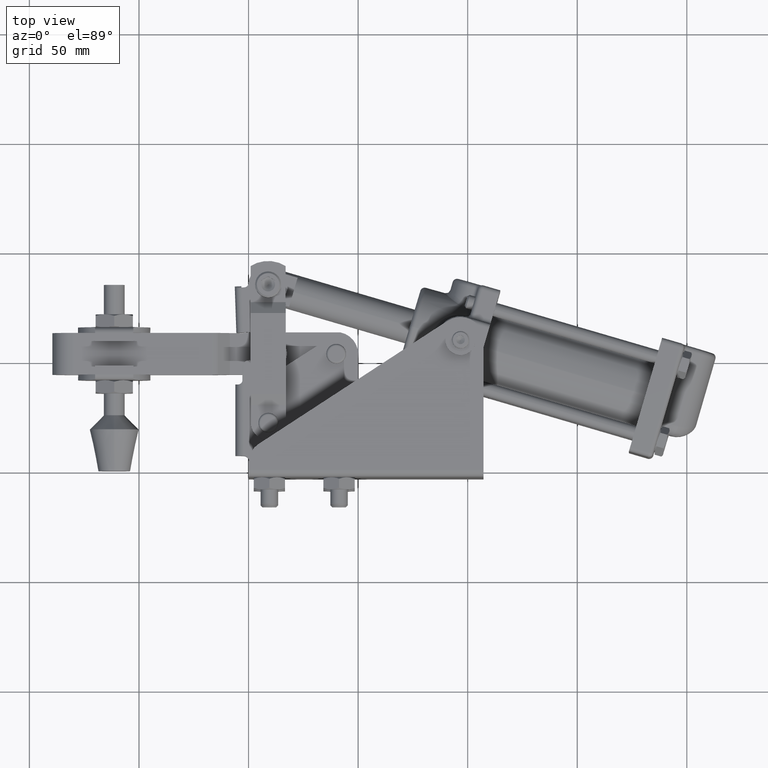
[diagram: clean part render]
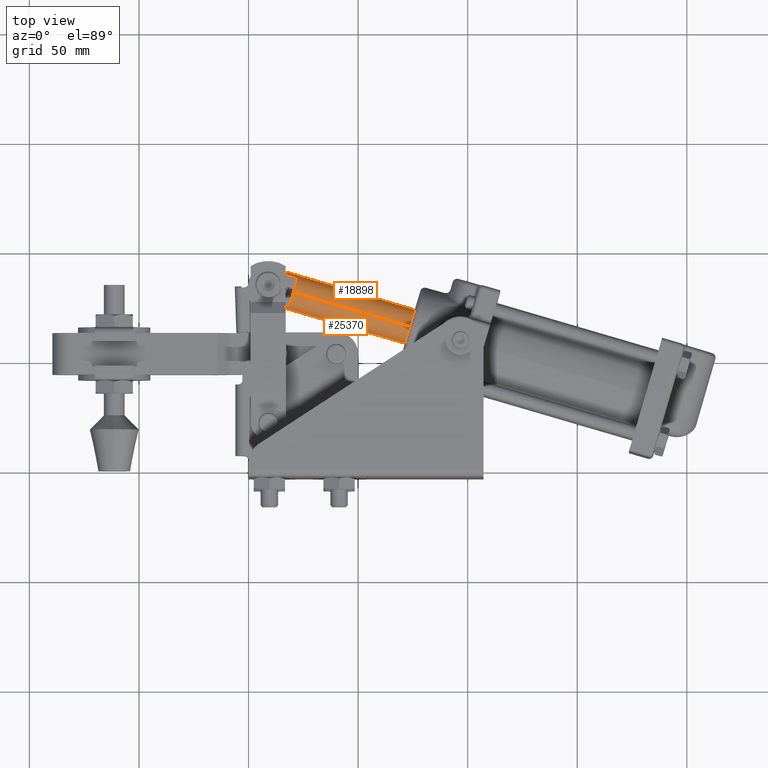
[diagram: same view with one multi-face feature highlighted, each face labeled with its STEP entity id]
A machine part, top view. The highlighted faces form ONE feature: a constant-radius fillet chain: 2 tangent blend faces with common blend radius 8 mm. The faces share edges in the B-rep.
Their STEP definitions:
[1] entity #25370 (Cylinder):
#10 = CARTESIAN_POINT ( 'NONE',  ( 83.69756063410230200, 48.46589740183173200, -5.572739699503369400E-015 ) ) ;
#711 = EDGE_CURVE ( 'NONE', #22951, #13793, #9620, .T. ) ;
#2456 = CARTESIAN_POINT ( 'NONE',  ( 59.70509566448170300, 55.49168025369445400, -7.999999999999998200 ) ) ;
#2608 = DIRECTION ( 'NONE',  ( 0.0000000000000000000, 0.0000000000000000000, 1.000000000000000000 ) ) ;
#3649 = EDGE_CURVE ( 'NONE', #12721, #12297, #4742, .T. ) ;
#3759 = DIRECTION ( 'NONE',  ( 0.9596985987848242200, -0.2810313140745089300, -2.000102180355122200E-016 ) ) ;
#3852 = VECTOR ( 'NONE', #30471, 1000.000000000000100 ) ;
#3926 = CARTESIAN_POINT ( 'NONE',  ( -44.66703755958510400, 77.71932316130077800, -1.412453702423432000 ) ) ;
#4742 = CIRCLE ( 'NONE', #11624, 7.999999999999998200 ) ;
#5920 = EDGE_CURVE ( 'NONE', #12297, #11174, #25400, .T. ) ;
#6519 = LINE ( 'NONE', #17022, #18675 ) ;
#7234 = VERTEX_POINT ( 'NONE', #15891 ) ;
#8783 = CARTESIAN_POINT ( 'NONE',  ( 59.70509566448170300, 55.49168025369445400, 7.999999999999998200 ) ) ;
#9620 =( BOUNDED_CURVE ( )  B_SPLINE_CURVE ( 3, ( #11579, #3926, #14877, #23962 ),
 .UNSPECIFIED., .F., .T. ) 
 B_SPLINE_CURVE_WITH_KNOTS ( ( 4, 4 ),
 ( 4.712388980384689700, 5.235987755982986200 ),
 .UNSPECIFIED. ) 
 CURVE ( )  GEOMETRIC_REPRESENTATION_ITEM ( )  RATIONAL_B_SPLINE_CURVE ( ( 1.000000000000000000, 0.9772838841927123900, 0.9772838841927123900, 1.000000000000000000 ) ) 
 REPRESENTATION_ITEM ( '' )  );
#10302 = CARTESIAN_POINT ( 'NONE',  ( -45.87364224485695300, 78.45357829064599300, 2.776779212031900400 ) ) ;
#10312 = CARTESIAN_POINT ( 'NONE',  ( -46.84909366104368200, 79.47510655562402300, -3.999999999999964500 ) ) ;
#10757 = EDGE_CURVE ( 'NONE', #23233, #22951, #16465, .T. ) ;
#11083 = DIRECTION ( 'NONE',  ( 0.9596985987848242200, -0.2810313140745089300, -2.000102180355122200E-016 ) ) ;
#11174 = VERTEX_POINT ( 'NONE', #23231 ) ;
#11579 = CARTESIAN_POINT ( 'NONE',  ( -43.31150772052087900, 77.32237944123929200, 2.042858864511652000E-014 ) ) ;
#11624 = AXIS2_PLACEMENT_3D ( 'NONE', #14197, #11083, #22032 ) ;
#11874 = CYLINDRICAL_SURFACE ( 'NONE', #25609, 7.999999999999998200 ) ;
#12297 = VERTEX_POINT ( 'NONE', #2456 ) ;
#12372 = CARTESIAN_POINT ( 'NONE',  ( 83.69756063410230200, 48.46589740183173200, 7.999999999999992900 ) ) ;
#12491 = DIRECTION ( 'NONE',  ( 0.9596985987848241100, -0.2810313140745088800, -2.000102180355121900E-016 ) ) ;
#12721 = VERTEX_POINT ( 'NONE', #8783 ) ;
#13083 = ORIENTED_EDGE ( 'NONE', *, *, #3649, .F. ) ;
#13286 = CARTESIAN_POINT ( 'NONE',  ( -44.66703755958509700, 77.71932316130077800, 1.412453702423472200 ) ) ;
#13654 = DIRECTION ( 'NONE',  ( -0.9596985987848241100, 0.2810313140745089300, 2.000102180355121900E-016 ) ) ;
#13725 = CARTESIAN_POINT ( 'NONE',  ( 83.69756063410230200, 48.46589740183173200, -8.000000000000003600 ) ) ;
#13793 = VERTEX_POINT ( 'NONE', #10312 ) ;
#14009 = EDGE_LOOP ( 'NONE', ( #16331, #13083, #17735, #28850, #20024, #28593, #31894, #18820, #20927 ) ) ;
#14197 = CARTESIAN_POINT ( 'NONE',  ( 59.70509566448170300, 55.49168025369445400, -5.724842486155624300E-016 ) ) ;
#14367 = CARTESIAN_POINT ( 'NONE',  ( -43.31150772052087900, 77.32237944123929200, 2.042858864511652000E-014 ) ) ;
#14877 = CARTESIAN_POINT ( 'NONE',  ( -45.87364224485695300, 78.45357829064597900, -2.776779212031860400 ) ) ;
#14958 = AXIS2_PLACEMENT_3D ( 'NONE', #19294, #3759, #21888 ) ;
#15451 = CARTESIAN_POINT ( 'NONE',  ( -31.49391608048651700, 74.97860553043186400, 4.000000000000018700 ) ) ;
#15891 = CARTESIAN_POINT ( 'NONE',  ( -29.54687402250692700, 81.62759246262376700, 8.000000000000017800 ) ) ;
#16331 = ORIENTED_EDGE ( 'NONE', *, *, #5920, .F. ) ;
#16465 =( BOUNDED_CURVE ( )  B_SPLINE_CURVE ( 3, ( #31233, #10302, #13286, #14367 ),
 .UNSPECIFIED., .F., .T. ) 
 B_SPLINE_CURVE_WITH_KNOTS ( ( 4, 4 ),
 ( 1.047197551196600700, 1.570796326794896800 ),
 .UNSPECIFIED. ) 
 CURVE ( )  GEOMETRIC_REPRESENTATION_ITEM ( )  RATIONAL_B_SPLINE_CURVE ( ( 1.000000000000000000, 0.9772838841927123900, 0.9772838841927123900, 1.000000000000000000 ) ) 
 REPRESENTATION_ITEM ( '' )  );
#16658 = DIRECTION ( 'NONE',  ( -0.9596985987848241100, 0.2810313140745089300, 2.000102180355121900E-016 ) ) ;
#17022 = CARTESIAN_POINT ( 'NONE',  ( 81.75051857612273000, 41.81691046963982900, -3.999999999999988000 ) ) ;
#17488 = CARTESIAN_POINT ( 'NONE',  ( -46.84909366104366800, 79.47510655562400900, 4.000000000000010700 ) ) ;
#17735 = ORIENTED_EDGE ( 'NONE', *, *, #24743, .T. ) ;
#18127 = DIRECTION ( 'NONE',  ( -0.9596985987848240000, 0.2810313140745088800, 2.000102180355121700E-016 ) ) ;
#18514 = VECTOR ( 'NONE', #13654, 1000.000000000000100 ) ;
#18675 = VECTOR ( 'NONE', #32637, 1000.000000000000100 ) ;
#18820 = ORIENTED_EDGE ( 'NONE', *, *, #21919, .T. ) ;
#18838 = EDGE_CURVE ( 'NONE', #20788, #11174, #20152, .T. ) ;
#19294 = CARTESIAN_POINT ( 'NONE',  ( -29.54687402250692700, 81.62759246262378100, 1.802846602868707000E-014 ) ) ;
#20024 = ORIENTED_EDGE ( 'NONE', *, *, #23533, .T. ) ;
#20152 = CIRCLE ( 'NONE', #14958, 7.999999999999998200 ) ;
#20570 = LINE ( 'NONE', #32150, #26641 ) ;
#20788 = VERTEX_POINT ( 'NONE', #27412 ) ;
#20927 = ORIENTED_EDGE ( 'NONE', *, *, #18838, .T. ) ;
#21888 = DIRECTION ( 'NONE',  ( 0.0000000000000000000, 0.0000000000000000000, -1.000000000000000000 ) ) ;
#21919 = EDGE_CURVE ( 'NONE', #13793, #20788, #6519, .T. ) ;
#22032 = DIRECTION ( 'NONE',  ( 0.0000000000000000000, 0.0000000000000000000, -1.000000000000000000 ) ) ;
#22202 = CIRCLE ( 'NONE', #30241, 7.999999999999998200 ) ;
#22951 = VERTEX_POINT ( 'NONE', #30389 ) ;
#23231 = CARTESIAN_POINT ( 'NONE',  ( -29.54687402250691300, 81.62759246262376700, -7.999999999999979600 ) ) ;
#23233 = VERTEX_POINT ( 'NONE', #17488 ) ;
#23347 = VERTEX_POINT ( 'NONE', #15451 ) ;
#23533 = EDGE_CURVE ( 'NONE', #23347, #23233, #20570, .T. ) ;
#23747 = LINE ( 'NONE', #12372, #3852 ) ;
#23962 = CARTESIAN_POINT ( 'NONE',  ( -46.84909366104368200, 79.47510655562402300, -3.999999999999964500 ) ) ;
#24743 = EDGE_CURVE ( 'NONE', #12721, #7234, #23747, .T. ) ;
#25370 = ADVANCED_FACE ( 'NONE', ( #33335 ), #11874, .T. ) ;
#25400 = LINE ( 'NONE', #13725, #18514 ) ;
#25609 = AXIS2_PLACEMENT_3D ( 'NONE', #10, #18127, #2608 ) ;
#26641 = VECTOR ( 'NONE', #16658, 1000.000000000000100 ) ;
#27412 = CARTESIAN_POINT ( 'NONE',  ( -31.49391608048651700, 74.97860553043186400, -3.999999999999968000 ) ) ;
#27995 = CARTESIAN_POINT ( 'NONE',  ( -29.54687402250692700, 81.62759246262378100, 1.802846602868707000E-014 ) ) ;
#28350 = EDGE_CURVE ( 'NONE', #7234, #23347, #22202, .T. ) ;
#28593 = ORIENTED_EDGE ( 'NONE', *, *, #10757, .T. ) ;
#28850 = ORIENTED_EDGE ( 'NONE', *, *, #28350, .T. ) ;
#30241 = AXIS2_PLACEMENT_3D ( 'NONE', #27995, #12491, #30599 ) ;
#30389 = CARTESIAN_POINT ( 'NONE',  ( -43.31150772052087900, 77.32237944123929200, 2.042858864511652000E-014 ) ) ;
#30471 = DIRECTION ( 'NONE',  ( -0.9596985987848241100, 0.2810313140745089300, 2.000102180355121900E-016 ) ) ;
#30599 = DIRECTION ( 'NONE',  ( 0.0000000000000000000, 0.0000000000000000000, -1.000000000000000000 ) ) ;
#31233 = CARTESIAN_POINT ( 'NONE',  ( -46.84909366104366800, 79.47510655562400900, 4.000000000000010700 ) ) ;
#31894 = ORIENTED_EDGE ( 'NONE', *, *, #711, .T. ) ;
#32150 = CARTESIAN_POINT ( 'NONE',  ( 81.75051857612273000, 41.81691046963982900, 3.999999999999965400 ) ) ;
#32637 = DIRECTION ( 'NONE',  ( 0.9596985987848241100, -0.2810313140745089300, -2.000102180355121900E-016 ) ) ;
#33335 = FACE_OUTER_BOUND ( 'NONE', #14009, .T. ) ;
[2] entity #18898 (Cylinder):
#719 =( BOUNDED_CURVE ( )  B_SPLINE_CURVE ( 3, ( #19072, #727, #24964, #32266 ),
 .UNSPECIFIED., .F., .T. ) 
 B_SPLINE_CURVE_WITH_KNOTS ( ( 4, 4 ),
 ( 1.047197551196598500, 1.570796326794896600 ),
 .UNSPECIFIED. ) 
 CURVE ( )  GEOMETRIC_REPRESENTATION_ITEM ( )  RATIONAL_B_SPLINE_CURVE ( ( 1.000000000000000000, 0.9772838841927122800, 0.9772838841927122800, 1.000000000000000000 ) ) 
 REPRESENTATION_ITEM ( '' )  );
#727 = CARTESIAN_POINT ( 'NONE',  ( -41.58261440883632100, 93.10708199409401700, -2.776779212031871500 ) ) ;
#962 = CARTESIAN_POINT ( 'NONE',  ( 85.64460269208190400, 55.11488433402364300, 3.999999999999965400 ) ) ;
#1638 = DIRECTION ( 'NONE',  ( 0.9596985987848241100, -0.2810313140745089300, -2.000102180355121900E-016 ) ) ;
#2456 = CARTESIAN_POINT ( 'NONE',  ( 59.70509566448170300, 55.49168025369445400, -7.999999999999998200 ) ) ;
#3241 = VERTEX_POINT ( 'NONE', #28424 ) ;
#3406 = EDGE_CURVE ( 'NONE', #24322, #14772, #8408, .T. ) ;
#3852 = VECTOR ( 'NONE', #30471, 1000.000000000000100 ) ;
#3896 = ORIENTED_EDGE ( 'NONE', *, *, #5920, .T. ) ;
#4396 = DIRECTION ( 'NONE',  ( -0.9596985987848241100, 0.2810313140745089300, 2.000102180355121900E-016 ) ) ;
#4944 = CARTESIAN_POINT ( 'NONE',  ( -29.54687402250692700, 81.62759246262378100, 1.802846602868707000E-014 ) ) ;
#5920 = EDGE_CURVE ( 'NONE', #12297, #11174, #25400, .T. ) ;
#6121 = CARTESIAN_POINT ( 'NONE',  ( -27.59983196452734000, 88.27657939481568400, 4.000000000000018700 ) ) ;
#6707 = DIRECTION ( 'NONE',  ( 0.0000000000000000000, 0.0000000000000000000, 1.000000000000000000 ) ) ;
#6774 = FACE_OUTER_BOUND ( 'NONE', #21680, .T. ) ;
#7234 = VERTEX_POINT ( 'NONE', #15891 ) ;
#7550 = DIRECTION ( 'NONE',  ( 0.0000000000000000000, 0.0000000000000000000, -1.000000000000000000 ) ) ;
#8051 = VERTEX_POINT ( 'NONE', #26469 ) ;
#8408 = LINE ( 'NONE', #962, #22188 ) ;
#8553 = DIRECTION ( 'NONE',  ( 0.0000000000000000000, 0.0000000000000000000, -1.000000000000000000 ) ) ;
#8783 = CARTESIAN_POINT ( 'NONE',  ( 59.70509566448170300, 55.49168025369445400, 7.999999999999998200 ) ) ;
#8939 = EDGE_CURVE ( 'NONE', #13471, #3241, #16303, .T. ) ;
#9483 = CARTESIAN_POINT ( 'NONE',  ( -38.81500669532874100, 92.67755702179647400, 2.042858864510990900E-014 ) ) ;
#10397 = EDGE_CURVE ( 'NONE', #12297, #12721, #18988, .T. ) ;
#10959 = CIRCLE ( 'NONE', #23716, 7.999999999999998200 ) ;
#11174 = VERTEX_POINT ( 'NONE', #23231 ) ;
#11942 = CARTESIAN_POINT ( 'NONE',  ( 59.70509566448170300, 55.49168025369445400, -5.724842486155624300E-016 ) ) ;
#12086 = CARTESIAN_POINT ( 'NONE',  ( -40.17053653439297300, 93.07450074185794600, 1.412453702423473100 ) ) ;
#12297 = VERTEX_POINT ( 'NONE', #2456 ) ;
#12372 = CARTESIAN_POINT ( 'NONE',  ( 83.69756063410230200, 48.46589740183173200, 7.999999999999992900 ) ) ;
#12721 = VERTEX_POINT ( 'NONE', #8783 ) ;
#13311 = AXIS2_PLACEMENT_3D ( 'NONE', #4944, #23088, #7550 ) ;
#13471 = VERTEX_POINT ( 'NONE', #33505 ) ;
#13654 = DIRECTION ( 'NONE',  ( -0.9596985987848241100, 0.2810313140745089300, 2.000102180355121900E-016 ) ) ;
#13725 = CARTESIAN_POINT ( 'NONE',  ( 83.69756063410230200, 48.46589740183173200, -8.000000000000003600 ) ) ;
#14122 = EDGE_CURVE ( 'NONE', #14772, #7234, #10959, .T. ) ;
#14313 = AXIS2_PLACEMENT_3D ( 'NONE', #24824, #29998, #6707 ) ;
#14421 = EDGE_CURVE ( 'NONE', #3241, #8051, #719, .T. ) ;
#14710 = CARTESIAN_POINT ( 'NONE',  ( -41.58261440883631400, 93.10708199409401700, 2.776779212031903000 ) ) ;
#14772 = VERTEX_POINT ( 'NONE', #6121 ) ;
#15054 = CIRCLE ( 'NONE', #13311, 7.999999999999998200 ) ;
#15891 = CARTESIAN_POINT ( 'NONE',  ( -29.54687402250692700, 81.62759246262376700, 8.000000000000017800 ) ) ;
#15904 = DIRECTION ( 'NONE',  ( 0.0000000000000000000, 0.0000000000000000000, -1.000000000000000000 ) ) ;
#16303 = LINE ( 'NONE', #27055, #17094 ) ;
#16814 = ORIENTED_EDGE ( 'NONE', *, *, #8939, .T. ) ;
#17094 = VECTOR ( 'NONE', #4396, 1000.000000000000100 ) ;
#18010 = DIRECTION ( 'NONE',  ( 0.9596985987848241100, -0.2810313140745088800, -2.000102180355121900E-016 ) ) ;
#18514 = VECTOR ( 'NONE', #13654, 1000.000000000000100 ) ;
#18898 = ADVANCED_FACE ( 'NONE', ( #6774 ), #25836, .T. ) ;
#18988 = CIRCLE ( 'NONE', #24861, 7.999999999999998200 ) ;
#19072 = CARTESIAN_POINT ( 'NONE',  ( -42.95500954508451500, 92.77308042000783000, -3.999999999999964500 ) ) ;
#19844 = ORIENTED_EDGE ( 'NONE', *, *, #14122, .T. ) ;
#20347 = ORIENTED_EDGE ( 'NONE', *, *, #24743, .F. ) ;
#21497 = EDGE_CURVE ( 'NONE', #11174, #13471, #15054, .T. ) ;
#21680 = EDGE_LOOP ( 'NONE', ( #24911, #3896, #21724, #16814, #25795, #31146, #28687, #19844, #20347 ) ) ;
#21724 = ORIENTED_EDGE ( 'NONE', *, *, #21497, .T. ) ;
#22188 = VECTOR ( 'NONE', #1638, 1000.000000000000100 ) ;
#23088 = DIRECTION ( 'NONE',  ( 0.9596985987848242200, -0.2810313140745089300, -2.000102180355122200E-016 ) ) ;
#23231 = CARTESIAN_POINT ( 'NONE',  ( -29.54687402250691300, 81.62759246262376700, -7.999999999999979600 ) ) ;
#23372 = CARTESIAN_POINT ( 'NONE',  ( -29.54687402250692700, 81.62759246262378100, 1.802846602868707000E-014 ) ) ;
#23432 = CARTESIAN_POINT ( 'NONE',  ( -42.95500954508449400, 92.77308042000783000, 4.000000000000010700 ) ) ;
#23716 = AXIS2_PLACEMENT_3D ( 'NONE', #23372, #18010, #15904 ) ;
#23747 = LINE ( 'NONE', #12372, #3852 ) ;
#24322 = VERTEX_POINT ( 'NONE', #23432 ) ;
#24332 =( BOUNDED_CURVE ( )  B_SPLINE_CURVE ( 3, ( #9483, #12086, #14710, #32796 ),
 .UNSPECIFIED., .F., .T. ) 
 B_SPLINE_CURVE_WITH_KNOTS ( ( 4, 4 ),
 ( 4.712388980384689700, 5.235987755982986200 ),
 .UNSPECIFIED. ) 
 CURVE ( )  GEOMETRIC_REPRESENTATION_ITEM ( )  RATIONAL_B_SPLINE_CURVE ( ( 1.000000000000000000, 0.9772838841927123900, 0.9772838841927123900, 1.000000000000000000 ) ) 
 REPRESENTATION_ITEM ( '' )  );
#24743 = EDGE_CURVE ( 'NONE', #12721, #7234, #23747, .T. ) ;
#24824 = CARTESIAN_POINT ( 'NONE',  ( 83.69756063410230200, 48.46589740183173200, -5.572739699503369400E-015 ) ) ;
#24861 = AXIS2_PLACEMENT_3D ( 'NONE', #11942, #26666, #8553 ) ;
#24911 = ORIENTED_EDGE ( 'NONE', *, *, #10397, .F. ) ;
#24964 = CARTESIAN_POINT ( 'NONE',  ( -40.17053653439296600, 93.07450074185796000, -1.412453702423438000 ) ) ;
#25400 = LINE ( 'NONE', #13725, #18514 ) ;
#25795 = ORIENTED_EDGE ( 'NONE', *, *, #14421, .T. ) ;
#25836 = CYLINDRICAL_SURFACE ( 'NONE', #14313, 7.999999999999998200 ) ;
#26469 = CARTESIAN_POINT ( 'NONE',  ( -38.81500669532874100, 92.67755702179647400, 2.042858864510990900E-014 ) ) ;
#26666 = DIRECTION ( 'NONE',  ( 0.9596985987848242200, -0.2810313140745089300, -2.000102180355122200E-016 ) ) ;
#27055 = CARTESIAN_POINT ( 'NONE',  ( 85.64460269208190400, 55.11488433402364300, -3.999999999999988000 ) ) ;
#28424 = CARTESIAN_POINT ( 'NONE',  ( -42.95500954508451500, 92.77308042000783000, -3.999999999999964500 ) ) ;
#28687 = ORIENTED_EDGE ( 'NONE', *, *, #3406, .T. ) ;
#29998 = DIRECTION ( 'NONE',  ( -0.9596985987848240000, 0.2810313140745088800, 2.000102180355121700E-016 ) ) ;
#30471 = DIRECTION ( 'NONE',  ( -0.9596985987848241100, 0.2810313140745089300, 2.000102180355121900E-016 ) ) ;
#30918 = EDGE_CURVE ( 'NONE', #8051, #24322, #24332, .T. ) ;
#31146 = ORIENTED_EDGE ( 'NONE', *, *, #30918, .T. ) ;
#32266 = CARTESIAN_POINT ( 'NONE',  ( -38.81500669532874100, 92.67755702179647400, 2.042858864510990900E-014 ) ) ;
#32796 = CARTESIAN_POINT ( 'NONE',  ( -42.95500954508449400, 92.77308042000783000, 4.000000000000010700 ) ) ;
#33505 = CARTESIAN_POINT ( 'NONE',  ( -27.59983196452734700, 88.27657939481567000, -3.999999999999968000 ) ) ;